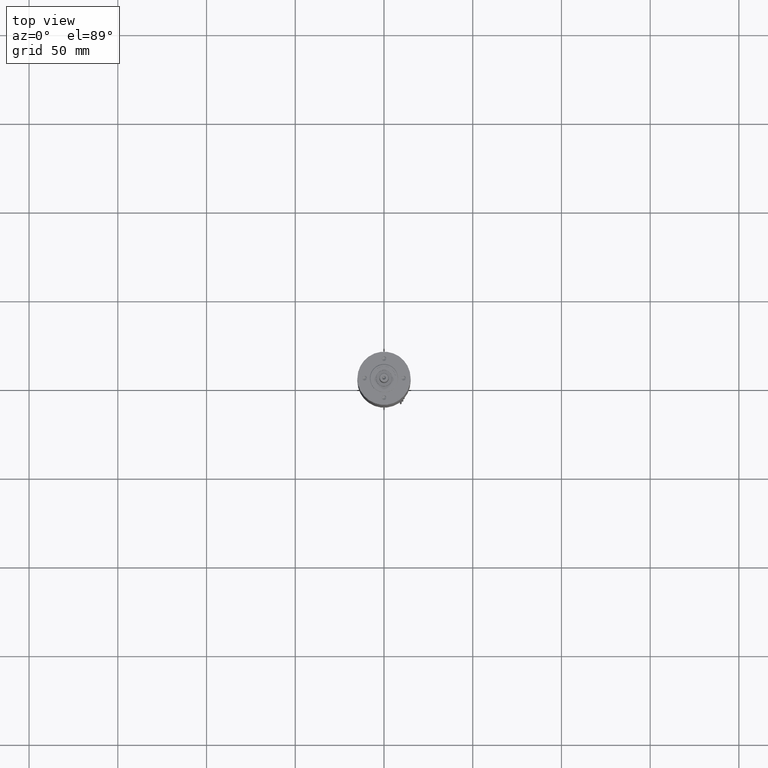
[diagram: clean part render]
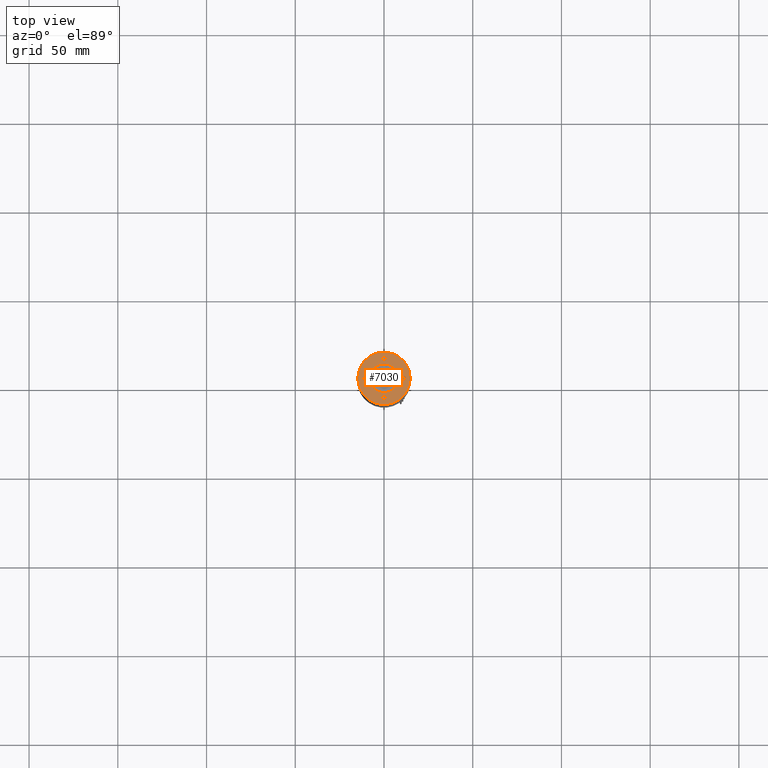
[diagram: same view with one face highlighted and labeled with its STEP entity id]
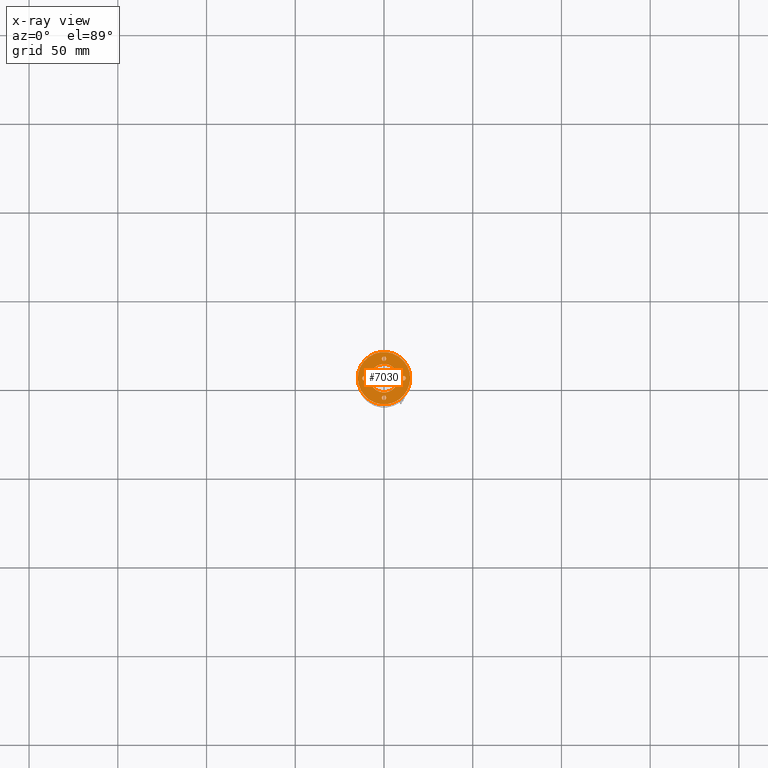
[diagram: x-ray of the same camera — body ghosted, the highlighted face saturated]
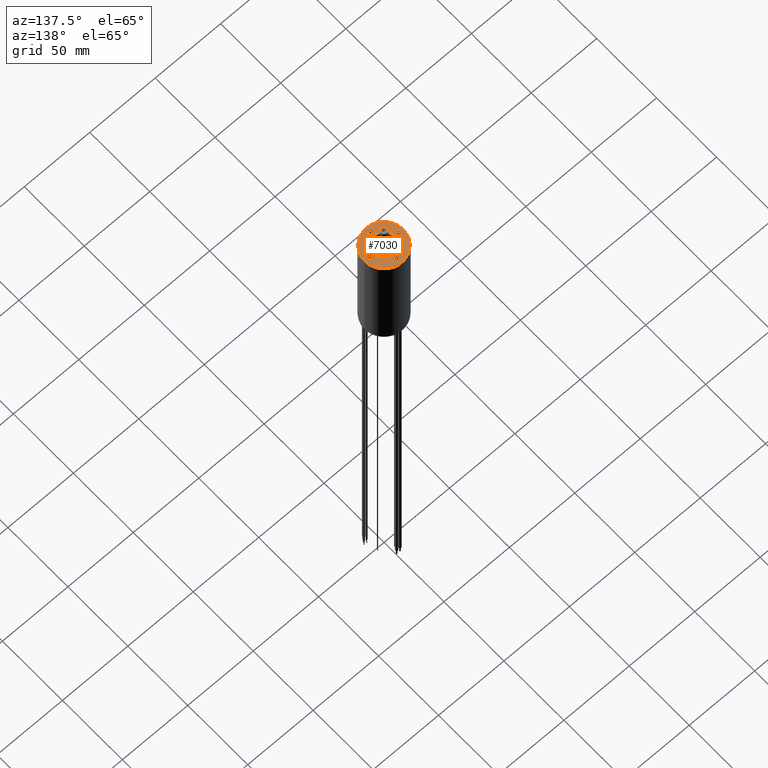
[diagram: same view with one face highlighted and labeled with its STEP entity id]
A machine part, top view. The second image highlights one B-rep face of the part: STEP entity #7030.
The next image is the same camera in x-ray: the body ghosted, the highlighted face saturated — about 0% of this face is hidden behind the body in this view.
A second angle (auxiliary view) of the same face is appended — the face is thin or edge-on in the first view.
In plain terms, the highlighted planar face has unit normal (0, 0, -1).
Its self-contained STEP definition (entity closure, byte-faithful):
#190 = VERTEX_POINT ( 'NONE', #6737 ) ;
#290 = CARTESIAN_POINT ( 'NONE',  ( -12.24999999999999822, 0.0000000000000000000, 89.00000000005684342 ) ) ;
#313 = CARTESIAN_POINT ( 'NONE',  ( 0.0000000000000000000, -11.00000000000000000, 89.00000000005684342 ) ) ;
#330 = CARTESIAN_POINT ( 'NONE',  ( 0.0000000000000000000, -8.000000000000000000, 89.00000000000000000 ) ) ;
#541 = FACE_BOUND ( 'NONE', #4735, .T. ) ;
#613 = CIRCLE ( 'NONE', #4403, 14.75000000000000000 ) ;
#632 = EDGE_CURVE ( 'NONE', #1072, #1072, #1234, .T. ) ;
#665 = CARTESIAN_POINT ( 'NONE',  ( 0.0000000000000000000, 0.0000000000000000000, 89.00000000000000000 ) ) ;
#1001 = DIRECTION ( 'NONE',  ( 0.0000000000000000000, -1.000000000000000000, 0.0000000000000000000 ) ) ;
#1072 = VERTEX_POINT ( 'NONE', #3884 ) ;
#1234 = CIRCLE ( 'NONE', #2430, 1.250000000000000000 ) ;
#1509 = AXIS2_PLACEMENT_3D ( 'NONE', #2153, #4023, #6674 ) ;
#1553 = PLANE ( 'NONE',  #3782 ) ;
#1593 = DIRECTION ( 'NONE',  ( 0.0000000000000000000, 0.0000000000000000000, 1.000000000000000000 ) ) ;
#1688 = DIRECTION ( 'NONE',  ( 0.0000000000000000000, 0.0000000000000000000, 1.000000000000000000 ) ) ;
#1711 = DIRECTION ( 'NONE',  ( -1.000000000000000000, 0.0000000000000000000, 0.0000000000000000000 ) ) ;
#1810 = DIRECTION ( 'NONE',  ( 0.0000000000000000000, 0.0000000000000000000, 1.000000000000000000 ) ) ;
#1962 = DIRECTION ( 'NONE',  ( 0.0000000000000000000, 0.0000000000000000000, 1.000000000000000000 ) ) ;
#1966 = ORIENTED_EDGE ( 'NONE', *, *, #4208, .F. ) ;
#2153 = CARTESIAN_POINT ( 'NONE',  ( 11.00000000000000000, 0.0000000000000000000, 89.00000000005684342 ) ) ;
#2243 = CARTESIAN_POINT ( 'NONE',  ( -8.000000000000000000, 0.0000000000000000000, 89.00000000000000000 ) ) ;
#2284 = DIRECTION ( 'NONE',  ( -1.000000000000000000, 0.0000000000000000000, 0.0000000000000000000 ) ) ;
#2315 = CARTESIAN_POINT ( 'NONE',  ( -1.250000000000000000, 11.00000000000000000, 89.00000000005684342 ) ) ;
#2430 = AXIS2_PLACEMENT_3D ( 'NONE', #313, #1593, #2284 ) ;
#2484 = CARTESIAN_POINT ( 'NONE',  ( 0.0000000000000000000, 0.0000000000000000000, 89.00000000000000000 ) ) ;
#2755 = VERTEX_POINT ( 'NONE', #7327 ) ;
#2815 = CIRCLE ( 'NONE', #7801, 1.250000000000000000 ) ;
#3008 = ORIENTED_EDGE ( 'NONE', *, *, #632, .F. ) ;
#3049 = DIRECTION ( 'NONE',  ( -1.000000000000000000, 0.0000000000000000000, 0.0000000000000000000 ) ) ;
#3083 = EDGE_CURVE ( 'NONE', #2755, #2755, #613, .T. ) ;
#3458 = VERTEX_POINT ( 'NONE', #290 ) ;
#3582 = EDGE_LOOP ( 'NONE', ( #3008 ) ) ;
#3671 = ORIENTED_EDGE ( 'NONE', *, *, #6375, .F. ) ;
#3782 = AXIS2_PLACEMENT_3D ( 'NONE', #330, #4748, #1001 ) ;
#3884 = CARTESIAN_POINT ( 'NONE',  ( -1.250000000000000000, -11.00000000000000000, 89.00000000005684342 ) ) ;
#3912 = FACE_BOUND ( 'NONE', #4308, .T. ) ;
#3930 = AXIS2_PLACEMENT_3D ( 'NONE', #665, #1962, #5185 ) ;
#3957 = EDGE_LOOP ( 'NONE', ( #6438 ) ) ;
#4023 = DIRECTION ( 'NONE',  ( 0.0000000000000000000, 0.0000000000000000000, 1.000000000000000000 ) ) ;
#4208 = EDGE_CURVE ( 'NONE', #3458, #3458, #4229, .T. ) ;
#4229 = CIRCLE ( 'NONE', #5488, 1.249999999999999334 ) ;
#4308 = EDGE_LOOP ( 'NONE', ( #1966 ) ) ;
#4403 = AXIS2_PLACEMENT_3D ( 'NONE', #2484, #7730, #5054 ) ;
#4718 = EDGE_CURVE ( 'NONE', #190, #190, #7649, .T. ) ;
#4735 = EDGE_LOOP ( 'NONE', ( #7322 ) ) ;
#4748 = DIRECTION ( 'NONE',  ( 0.0000000000000000000, 0.0000000000000000000, -1.000000000000000000 ) ) ;
#4946 = EDGE_LOOP ( 'NONE', ( #7506 ) ) ;
#5054 = DIRECTION ( 'NONE',  ( -1.000000000000000000, 0.0000000000000000000, 0.0000000000000000000 ) ) ;
#5185 = DIRECTION ( 'NONE',  ( -1.000000000000000000, 0.0000000000000000000, 0.0000000000000000000 ) ) ;
#5452 = FACE_OUTER_BOUND ( 'NONE', #3957, .T. ) ;
#5488 = AXIS2_PLACEMENT_3D ( 'NONE', #5548, #1688, #1711 ) ;
#5548 = CARTESIAN_POINT ( 'NONE',  ( -11.00000000000000000, 0.0000000000000000000, 89.00000000005684342 ) ) ;
#6163 = CIRCLE ( 'NONE', #3930, 8.000000000000000000 ) ;
#6346 = CARTESIAN_POINT ( 'NONE',  ( 0.0000000000000000000, 11.00000000000000000, 89.00000000005684342 ) ) ;
#6348 = FACE_BOUND ( 'NONE', #4946, .T. ) ;
#6375 = EDGE_CURVE ( 'NONE', #7904, #7904, #6163, .T. ) ;
#6427 = EDGE_LOOP ( 'NONE', ( #3671 ) ) ;
#6438 = ORIENTED_EDGE ( 'NONE', *, *, #3083, .T. ) ;
#6674 = DIRECTION ( 'NONE',  ( -1.000000000000000000, 0.0000000000000000000, 0.0000000000000000000 ) ) ;
#6737 = CARTESIAN_POINT ( 'NONE',  ( 9.750000000000000000, 0.0000000000000000000, 89.00000000005684342 ) ) ;
#7030 = ADVANCED_FACE ( 'NONE', ( #5452, #7379, #6348, #541, #3912, #8057 ), #1553, .F. ) ;
#7082 = EDGE_CURVE ( 'NONE', #7808, #7808, #2815, .T. ) ;
#7322 = ORIENTED_EDGE ( 'NONE', *, *, #7082, .F. ) ;
#7327 = CARTESIAN_POINT ( 'NONE',  ( -14.75000000000000000, 0.0000000000000000000, 89.00000000000000000 ) ) ;
#7379 = FACE_BOUND ( 'NONE', #3582, .T. ) ;
#7506 = ORIENTED_EDGE ( 'NONE', *, *, #4718, .F. ) ;
#7649 = CIRCLE ( 'NONE', #1509, 1.249999999999999334 ) ;
#7730 = DIRECTION ( 'NONE',  ( 0.0000000000000000000, 0.0000000000000000000, 1.000000000000000000 ) ) ;
#7801 = AXIS2_PLACEMENT_3D ( 'NONE', #6346, #1810, #3049 ) ;
#7808 = VERTEX_POINT ( 'NONE', #2315 ) ;
#7904 = VERTEX_POINT ( 'NONE', #2243 ) ;
#8057 = FACE_BOUND ( 'NONE', #6427, .T. ) ;